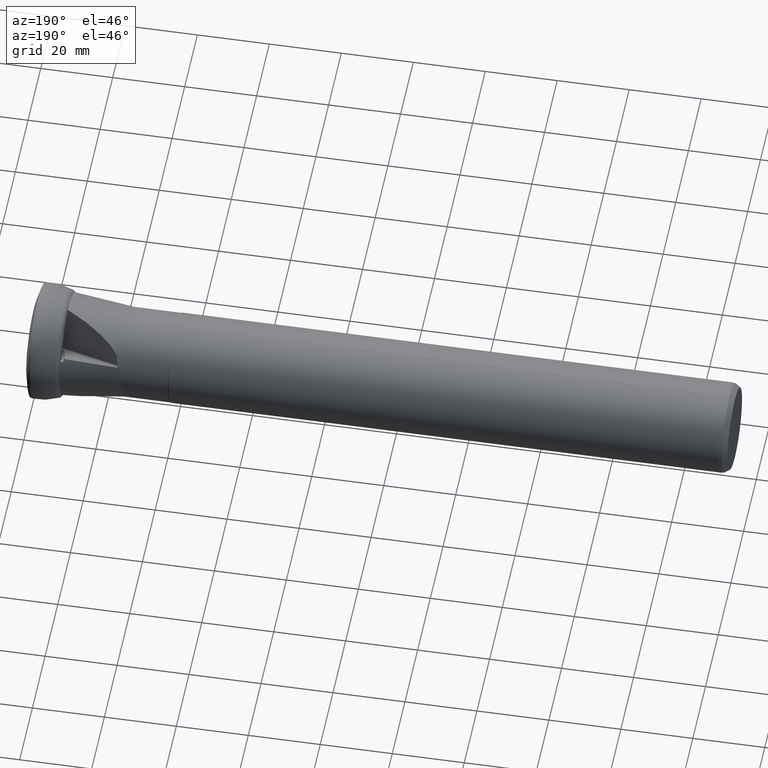
[diagram: clean part render]
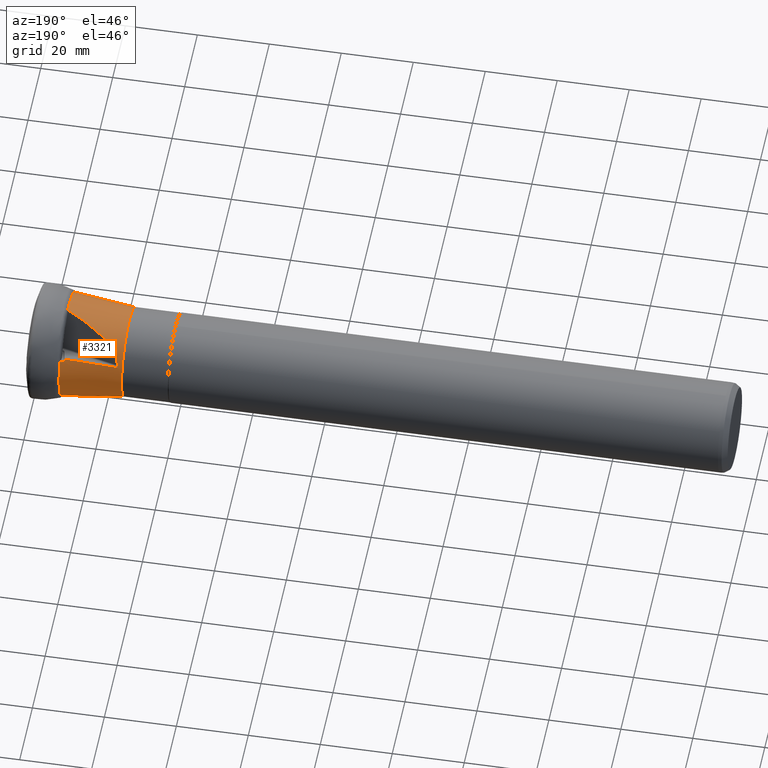
[diagram: same view with one face highlighted and labeled with its STEP entity id]
A machine part, auxiliary view. The second image highlights one B-rep face of the part: STEP entity #3321.
In plain terms, the highlighted conical surface has half-angle 6.461 deg.
Its self-contained STEP definition (entity closure, byte-faithful):
#9 = CARTESIAN_POINT ( 'NONE',  ( -24.44653898297296000, 11.43449833691993300, 5.180416396095794500 ) ) ;
#12 = AXIS2_PLACEMENT_3D ( 'NONE', #1177, #3421, #1516 ) ;
#38 = CARTESIAN_POINT ( 'NONE',  ( -24.33030226334806700, 11.45024752584629700, 5.177549694197029600 ) ) ;
#42 = FACE_OUTER_BOUND ( 'NONE', #835, .T. ) ;
#110 = CARTESIAN_POINT ( 'NONE',  ( -8.780705335247958500, 0.8021957447400367400, 14.30477988472367900 ) ) ;
#111 = EDGE_CURVE ( 'NONE', #257, #598, #2044, .T. ) ;
#135 = DIRECTION ( 'NONE',  ( 1.000000000000000000, -0.0000000000000000000, -0.0000000000000000000 ) ) ;
#143 = CARTESIAN_POINT ( 'NONE',  ( -9.940034253414063800, 12.51027876781869000, 6.709589495974801900 ) ) ;
#159 = CARTESIAN_POINT ( 'NONE',  ( -16.45537833218188300, 4.482933497027972600, 13.22792718359638700 ) ) ;
#169 = CARTESIAN_POINT ( 'NONE',  ( -9.949728527705140400, -0.3114853480998101000, -14.19161366759841200 ) ) ;
#238 = CIRCLE ( 'NONE', #12, 12.39999999999999900 ) ;
#257 = VERTEX_POINT ( 'NONE', #3065 ) ;
#280 = CIRCLE ( 'NONE', #2660, 14.32725533950150300 ) ;
#286 = CARTESIAN_POINT ( 'NONE',  ( -9.294879255188650500, 12.91413196333091300, 6.068830823020640300 ) ) ;
#296 = CARTESIAN_POINT ( 'NONE',  ( -8.780705335247960300, -1.165349774653683800, -14.27978310290422400 ) ) ;
#305 = VERTEX_POINT ( 'NONE', #3697 ) ;
#334 = CARTESIAN_POINT ( 'NONE',  ( -24.10185698594853000, -11.78453397546353500, 4.437420041870495000 ) ) ;
#350 = CARTESIAN_POINT ( 'NONE',  ( -24.09788945281969300, -10.23615636501278000, 7.334736238237690400 ) ) ;
#351 = B_SPLINE_CURVE_WITH_KNOTS ( 'NONE', 3,
 ( #2547, #2851, #2878, #923 ),
 .UNSPECIFIED., .F., .F.,
 ( 4, 4 ),
 ( 0.001921647441185771400, 0.01619645961028458000 ),
 .UNSPECIFIED. ) ;
#379 = CARTESIAN_POINT ( 'NONE',  ( -8.780705335247958500, -11.78398004032007100, 8.149114060596559700 ) ) ;
#425 = CARTESIAN_POINT ( 'NONE',  ( -9.809478229513201700, -11.86591564291479800, 7.820130587765024000 ) ) ;
#448 = VERTEX_POINT ( 'NONE', #3226 ) ;
#501 = CARTESIAN_POINT ( 'NONE',  ( -8.780705335247960300, 0.0000000000000000000, 0.0000000000000000000 ) ) ;
#524 = CARTESIAN_POINT ( 'NONE',  ( -9.944916019159260000, 12.47836084260130600, 6.767932035248173300 ) ) ;
#529 = CARTESIAN_POINT ( 'NONE',  ( -8.780705335247960300, 12.94932981497364500, 6.130669042307608200 ) ) ;
#556 = CARTESIAN_POINT ( 'NONE',  ( -9.085277308025149900, 12.92848756175823300, 6.094043241802509700 ) ) ;
#563 = ORIENTED_EDGE ( 'NONE', *, *, #1813, .T. ) ;
#591 = CARTESIAN_POINT ( 'NONE',  ( -9.085277308025149900, 12.92848756175823300, 6.094043241802509700 ) ) ;
#598 = VERTEX_POINT ( 'NONE', #350 ) ;
#606 = CARTESIAN_POINT ( 'NONE',  ( -9.954471549388722800, -12.16833406916228300, 7.308275961441376400 ) ) ;
#607 =( BOUNDED_CURVE ( )  B_SPLINE_CURVE ( 3, ( #1766, #3997, #159, #2422 ),
 .UNSPECIFIED., .F., .T. ) 
 B_SPLINE_CURVE_WITH_KNOTS ( ( 4, 4 ),
 ( 3.384171689067799100, 4.043992165308101700 ),
 .UNSPECIFIED. ) 
 CURVE ( )  GEOMETRIC_REPRESENTATION_ITEM ( )  RATIONAL_B_SPLINE_CURVE ( ( 1.000000000000000000, 0.9640476176190030400, 0.9640476176190030400, 1.000000000000000000 ) ) 
 REPRESENTATION_ITEM ( '' )  );
#666 =( BOUNDED_CURVE ( )  B_SPLINE_CURVE ( 3, ( #4008, #2417, #169, #2434 ),
 .UNSPECIFIED., .F., .T. ) 
 B_SPLINE_CURVE_WITH_KNOTS ( ( 4, 4 ),
 ( 2.687790319628975000, 2.701606582758828300 ),
 .UNSPECIFIED. ) 
 CURVE ( )  GEOMETRIC_REPRESENTATION_ITEM ( )  RATIONAL_B_SPLINE_CURVE ( ( 1.000000000000000000, 0.9999840926360219500, 0.9999840926360219500, 1.000000000000000000 ) ) 
 REPRESENTATION_ITEM ( '' )  );
#680 = CARTESIAN_POINT ( 'NONE',  ( -24.44653898297296000, 11.43449833691993300, 5.180416396095794500 ) ) ;
#711 = B_SPLINE_CURVE_WITH_KNOTS ( 'NONE', 3,
 ( #3954, #1712, #2369, #425, #2698, #750, #3018, #1074 ),
 .UNSPECIFIED., .F., .F.,
 ( 4, 2, 2, 4 ),
 ( 2.453269466693398700E-018, 0.0003128874078835675000, 0.0006257748157671326100, 0.001251549631534260900 ),
 .UNSPECIFIED. ) ;
#728 = VERTEX_POINT ( 'NONE', #1737 ) ;
#748 = EDGE_CURVE ( 'NONE', #1284, #1893, #1786, .T. ) ;
#750 = CARTESIAN_POINT ( 'NONE',  ( -9.507133594693797800, -11.73383170954345500, 8.078089937416981700 ) ) ;
#775 = CARTESIAN_POINT ( 'NONE',  ( -8.983754121029855700, -1.179548328912410000, -14.25554798689740100 ) ) ;
#777 = CARTESIAN_POINT ( 'NONE',  ( -8.780705335247963800, -12.78940064808532500, -6.457668048609237500 ) ) ;
#792 = CARTESIAN_POINT ( 'NONE',  ( -9.954471549388722800, -0.2449856058943643800, -14.19222440635089600 ) ) ;
#820 = DIRECTION ( 'NONE',  ( 0.0000000000000000000, 0.0000000000000000000, -1.000000000000000000 ) ) ;
#835 = EDGE_LOOP ( 'NONE', ( #898, #2110, #3179, #1553, #3742, #4066, #1069, #3261, #1132, #2252, #3319, #1185, #2251, #3370, #1998, #3088, #1756, #2056, #2380, #563, #4015, #3575, #1283, #2476 ) ) ;
#841 = CARTESIAN_POINT ( 'NONE',  ( -24.09788945282545900, 11.47014609487816500, 5.197403330091249900 ) ) ;
#860 = EDGE_CURVE ( 'NONE', #448, #2722, #3730, .T. ) ;
#873 = CARTESIAN_POINT ( 'NONE',  ( -24.21593057449596000, -11.38487002440202100, 5.462157558405134900 ) ) ;
#878 = EDGE_CURVE ( 'NONE', #2523, #448, #1337, .T. ) ;
#898 = ORIENTED_EDGE ( 'NONE', *, *, #2276, .F. ) ;
#899 = VERTEX_POINT ( 'NONE', #9 ) ;
#910 = VERTEX_POINT ( 'NONE', #841 ) ;
#912 = CARTESIAN_POINT ( 'NONE',  ( -9.940034253414063800, -0.4444644314300040300, -14.18901396934346700 ) ) ;
#923 = CARTESIAN_POINT ( 'NONE',  ( -24.09788945282545900, 11.47014609487816500, 5.197403330091249900 ) ) ;
#938 =( BOUNDED_CURVE ( )  B_SPLINE_CURVE ( 3, ( #3528, #1937, #3859, #1952 ),
 .UNSPECIFIED., .F., .T. ) 
 B_SPLINE_CURVE_WITH_KNOTS ( ( 4, 4 ),
 ( 3.384171689067796000, 4.043992165308101700 ),
 .UNSPECIFIED. ) 
 CURVE ( )  GEOMETRIC_REPRESENTATION_ITEM ( )  RATIONAL_B_SPLINE_CURVE ( ( 1.000000000000000000, 0.9640476176190027100, 0.9640476176190027100, 1.000000000000000000 ) ) 
 REPRESENTATION_ITEM ( '' )  );
#988 = EDGE_CURVE ( 'NONE', #1284, #3398, #2853, .T. ) ;
#1069 = ORIENTED_EDGE ( 'NONE', *, *, #3411, .T. ) ;
#1074 = CARTESIAN_POINT ( 'NONE',  ( -9.085277308025181900, -11.74184004004099600, 8.149377040092456800 ) ) ;
#1077 = CARTESIAN_POINT ( 'NONE',  ( -24.44653898297316600, -10.20362136965907100, 7.312357841257284700 ) ) ;
#1091 = CARTESIAN_POINT ( 'NONE',  ( -25.80000000000000100, 0.0000000000000000000, -12.39999999999999900 ) ) ;
#1102 = CARTESIAN_POINT ( 'NONE',  ( -8.882230127622778000, -11.76993918913210300, 8.149205142763055000 ) ) ;
#1132 = ORIENTED_EDGE ( 'NONE', *, *, #860, .F. ) ;
#1146 = CARTESIAN_POINT ( 'NONE',  ( -24.44653898297178800, -1.230876967248578000, -12.49277423735313700 ) ) ;
#1148 = VERTEX_POINT ( 'NONE', #3563 ) ;
#1149 = B_SPLINE_CURVE_WITH_KNOTS ( 'NONE', 3,
 ( #529, #1836, #2500, #556 ),
 .UNSPECIFIED., .F., .F.,
 ( 4, 4 ),
 ( 0.0007378485912096133200, 0.001045322061837736300 ),
 .UNSPECIFIED. ) ;
#1161 = B_SPLINE_CURVE_WITH_KNOTS ( 'NONE', 3,
 ( #912, #3785, #3482, #1573, #3800, #1892, #4117, #2224 ),
 .UNSPECIFIED., .F., .F.,
 ( 4, 2, 2, 4 ),
 ( 1.951563910473908000E-018, 0.0003128874078835671200, 0.0006257748157671322900, 0.001251549631534262600 ),
 .UNSPECIFIED. ) ;
#1167 = CARTESIAN_POINT ( 'NONE',  ( -24.33030226334936300, -1.241234198397105600, -12.50498008410068400 ) ) ;
#1177 = CARTESIAN_POINT ( 'NONE',  ( -25.80000000000000100, 0.0000000000000000000, 0.0000000000000000000 ) ) ;
#1185 = ORIENTED_EDGE ( 'NONE', *, *, #111, .T. ) ;
#1187 = EDGE_CURVE ( 'NONE', #2405, #3440, #3106, .T. ) ;
#1195 = CARTESIAN_POINT ( 'NONE',  ( -24.21593057449590000, 10.42280221725263400, 7.128507880714066000 ) ) ;
#1205 = DIRECTION ( 'NONE',  ( 1.000000000000000000, -0.0000000000000000000, -0.0000000000000000000 ) ) ;
#1250 = CARTESIAN_POINT ( 'NONE',  ( -9.932288387899825800, 12.56092272927275700, 6.617017773659865700 ) ) ;
#1257 = CARTESIAN_POINT ( 'NONE',  ( -9.940034253414063800, 12.51027876781869000, 6.709589495974801900 ) ) ;
#1283 = ORIENTED_EDGE ( 'NONE', *, *, #988, .T. ) ;
#1284 = VERTEX_POINT ( 'NONE', #143 ) ;
#1310 = EDGE_CURVE ( 'NONE', #1148, #2982, #607, .T. ) ;
#1328 = CARTESIAN_POINT ( 'NONE',  ( -24.21408615572525100, 11.46206554000968200, 5.183355771703091400 ) ) ;
#1331 =( BOUNDED_CURVE ( )  B_SPLINE_CURVE ( 3, ( #1146, #3096, #3716, #1807 ),
 .UNSPECIFIED., .F., .T. ) 
 B_SPLINE_CURVE_WITH_KNOTS ( ( 4, 4 ),
 ( 4.614021394744988000, 4.875824223977885700 ),
 .UNSPECIFIED. ) 
 CURVE ( )  GEOMETRIC_REPRESENTATION_ITEM ( )  RATIONAL_B_SPLINE_CURVE ( ( 1.000000000000000000, 0.9942964245158141300, 0.9942964245158141300, 1.000000000000000000 ) ) 
 REPRESENTATION_ITEM ( '' )  );
#1337 =( BOUNDED_CURVE ( )  B_SPLINE_CURVE ( 3, ( #334, #1741, #2727, #777 ),
 .UNSPECIFIED., .F., .T. ) 
 B_SPLINE_CURVE_WITH_KNOTS ( ( 4, 4 ),
 ( 3.384171689067798200, 4.043992165308100800 ),
 .UNSPECIFIED. ) 
 CURVE ( )  GEOMETRIC_REPRESENTATION_ITEM ( )  RATIONAL_B_SPLINE_CURVE ( ( 1.000000000000000000, 0.9640476176190030400, 0.9640476176190030400, 1.000000000000000000 ) ) 
 REPRESENTATION_ITEM ( '' )  );
#1367 = CARTESIAN_POINT ( 'NONE',  ( -9.949728527705142200, -12.13455528278484300, 7.365561058160177600 ) ) ;
#1404 = EDGE_CURVE ( 'NONE', #3267, #305, #1331, .T. ) ;
#1441 = CARTESIAN_POINT ( 'NONE',  ( -8.983754121029857500, -11.75589253706513300, 8.149292811278220600 ) ) ;
#1451 = CARTESIAN_POINT ( 'NONE',  ( -19.38520277073310900, -0.9044465744989834700, -13.10083118530844700 ) ) ;
#1469 = EDGE_CURVE ( 'NONE', #3267, #4146, #1985, .T. ) ;
#1480 = VERTEX_POINT ( 'NONE', #2486 ) ;
#1495 = EDGE_CURVE ( 'NONE', #899, #1148, #2663, .T. ) ;
#1502 = EDGE_CURVE ( 'NONE', #1748, #3398, #1149, .T. ) ;
#1516 = DIRECTION ( 'NONE',  ( 0.0000000000000000000, 0.0000000000000000000, -1.000000000000000000 ) ) ;
#1534 = AXIS2_PLACEMENT_3D ( 'NONE', #3154, #2509, #2841 ) ;
#1553 = ORIENTED_EDGE ( 'NONE', *, *, #1469, .T. ) ;
#1573 = CARTESIAN_POINT ( 'NONE',  ( -9.809478229513198100, -0.8394739284589746200, -14.18624967980988000 ) ) ;
#1685 = CARTESIAN_POINT ( 'NONE',  ( -9.940034253414065500, -12.06581433638879400, 7.479424473368617000 ) ) ;
#1712 = CARTESIAN_POINT ( 'NONE',  ( -9.932288387899822300, -12.01096685391901000, 7.569569291693579900 ) ) ;
#1728 = CARTESIAN_POINT ( 'NONE',  ( -24.09788945282837200, -1.233989729866484100, -12.53213956832863100 ) ) ;
#1732 = CARTESIAN_POINT ( 'NONE',  ( -24.09788945281969300, -10.23615636501278000, 7.334736238237690400 ) ) ;
#1737 = CARTESIAN_POINT ( 'NONE',  ( -9.954471549388722800, -0.2449856058943643800, -14.19222440635089600 ) ) ;
#1739 = CARTESIAN_POINT ( 'NONE',  ( -8.882230127622778000, -1.172449079717680300, -14.26766891016793300 ) ) ;
#1741 = CARTESIAN_POINT ( 'NONE',  ( -21.75288693745894600, -13.34974062006384100, 1.035504152629540100 ) ) ;
#1748 = VERTEX_POINT ( 'NONE', #3871 ) ;
#1756 = ORIENTED_EDGE ( 'NONE', *, *, #2145, .F. ) ;
#1766 = CARTESIAN_POINT ( 'NONE',  ( -24.10185698594852600, 9.735185471253858600, 7.986995773576971700 ) ) ;
#1786 =( BOUNDED_CURVE ( )  B_SPLINE_CURVE ( 3, ( #2167, #524, #4025, #4078 ),
 .UNSPECIFIED., .F., .T. ) 
 B_SPLINE_CURVE_WITH_KNOTS ( ( 4, 4 ),
 ( 2.687790319628974500, 2.701606582758827800 ),
 .UNSPECIFIED. ) 
 CURVE ( )  GEOMETRIC_REPRESENTATION_ITEM ( )  RATIONAL_B_SPLINE_CURVE ( ( 1.000000000000000000, 0.9999840926360219500, 0.9999840926360219500, 1.000000000000000000 ) ) 
 REPRESENTATION_ITEM ( '' )  );
#1807 = CARTESIAN_POINT ( 'NONE',  ( -24.10185698594854000, 2.049348504209566700, -12.42441581544751400 ) ) ;
#1813 = EDGE_CURVE ( 'NONE', #899, #910, #2219, .T. ) ;
#1836 = CARTESIAN_POINT ( 'NONE',  ( -8.882230127622769100, 12.94238826884967800, 6.118463767404829700 ) ) ;
#1892 = CARTESIAN_POINT ( 'NONE',  ( -9.507133594693794300, -1.128915245086957700, -14.20084131290449700 ) ) ;
#1893 = VERTEX_POINT ( 'NONE', #2326 ) ;
#1898 = CARTESIAN_POINT ( 'NONE',  ( -9.809478229513191000, 12.70538957137367800, 6.366119092044800500 ) ) ;
#1907 = VERTEX_POINT ( 'NONE', #379 ) ;
#1937 = CARTESIAN_POINT ( 'NONE',  ( -21.75288693745897800, 5.778097408130331100, -12.07896658722314400 ) ) ;
#1952 = CARTESIAN_POINT ( 'NONE',  ( -8.780705335247962000, 11.98720490334528000, -7.847111836114542900 ) ) ;
#1985 = B_SPLINE_CURVE_WITH_KNOTS ( 'NONE', 3,
 ( #3121, #1167, #4063, #2160 ),
 .UNSPECIFIED., .F., .F.,
 ( 4, 4 ),
 ( 1.061523051406408400E-015, 0.0003508786306458333500 ),
 .UNSPECIFIED. ) ;
#1998 = ORIENTED_EDGE ( 'NONE', *, *, #2029, .T. ) ;
#2007 = CIRCLE ( 'NONE', #3934, 14.32725533950150300 ) ;
#2029 = EDGE_CURVE ( 'NONE', #2405, #2176, #711, .T. ) ;
#2044 = B_SPLINE_CURVE_WITH_KNOTS ( 'NONE', 3,
 ( #1077, #3023, #3326, #1732 ),
 .UNSPECIFIED., .F., .F.,
 ( 4, 4 ),
 ( 7.821280271812156000E-016, 0.0003508786306542013300 ),
 .UNSPECIFIED. ) ;
#2056 = ORIENTED_EDGE ( 'NONE', *, *, #1310, .F. ) ;
#2068 = CARTESIAN_POINT ( 'NONE',  ( -8.780705335247960300, -1.165349774653683800, -14.27978310290422400 ) ) ;
#2070 = CARTESIAN_POINT ( 'NONE',  ( -8.780705335247960300, 0.0000000000000000000, 0.0000000000000000000 ) ) ;
#2074 = CARTESIAN_POINT ( 'NONE',  ( -24.09788945281969300, -10.23615636501278000, 7.334736238237690400 ) ) ;
#2097 = B_SPLINE_CURVE_WITH_KNOTS ( 'NONE', 3,
 ( #792, #2737, #1451, #3674 ),
 .UNSPECIFIED., .F., .F.,
 ( 4, 4 ),
 ( 0.001921647441185771400, 0.01619645961028752200 ),
 .UNSPECIFIED. ) ;
#2110 = ORIENTED_EDGE ( 'NONE', *, *, #3953, .F. ) ;
#2115 = EDGE_CURVE ( 'NONE', #1907, #2176, #4119, .T. ) ;
#2145 = EDGE_CURVE ( 'NONE', #2982, #1907, #280, .T. ) ;
#2160 = CARTESIAN_POINT ( 'NONE',  ( -24.09788945282837200, -1.233989729866484100, -12.53213956832863100 ) ) ;
#2167 = CARTESIAN_POINT ( 'NONE',  ( -9.940034253414063800, 12.51027876781869000, 6.709589495974801900 ) ) ;
#2169 = CARTESIAN_POINT ( 'NONE',  ( -24.33148363913075600, -10.85487629656772800, 6.425967319928069800 ) ) ;
#2176 = VERTEX_POINT ( 'NONE', #3091 ) ;
#2219 = B_SPLINE_CURVE_WITH_KNOTS ( 'NONE', 3,
 ( #680, #38, #1328, #3557 ),
 .UNSPECIFIED., .F., .F.,
 ( 4, 4 ),
 ( 7.298079800209179200E-016, 0.0003508786306482283000 ),
 .UNSPECIFIED. ) ;
#2224 = CARTESIAN_POINT ( 'NONE',  ( -9.085277308025178300, -1.186647521717336200, -14.24342028189501300 ) ) ;
#2231 = CARTESIAN_POINT ( 'NONE',  ( -9.507133594693781800, 12.86274695463031400, 6.122751375487461600 ) ) ;
#2251 = ORIENTED_EDGE ( 'NONE', *, *, #3034, .F. ) ;
#2252 = ORIENTED_EDGE ( 'NONE', *, *, #878, .F. ) ;
#2276 = EDGE_CURVE ( 'NONE', #2739, #1748, #2007, .T. ) ;
#2306 = EDGE_LOOP ( 'NONE', ( #3630 ) ) ;
#2326 = CARTESIAN_POINT ( 'NONE',  ( -9.954471549388722800, 12.41331967505655100, 6.883948444909463200 ) ) ;
#2369 = CARTESIAN_POINT ( 'NONE',  ( -9.903847824582353400, -11.95894586588699600, 7.657310356188492800 ) ) ;
#2380 = ORIENTED_EDGE ( 'NONE', *, *, #1495, .F. ) ;
#2397 = DIRECTION ( 'NONE',  ( 0.0000000000000000000, 0.0000000000000000000, -1.000000000000000000 ) ) ;
#2405 = VERTEX_POINT ( 'NONE', #3799 ) ;
#2408 = B_SPLINE_CURVE_WITH_KNOTS ( 'NONE', 3,
 ( #2068, #1739, #775, #3047 ),
 .UNSPECIFIED., .F., .F.,
 ( 4, 4 ),
 ( 0.0002636938171731587400, 0.0005711672846014324000 ),
 .UNSPECIFIED. ) ;
#2417 = CARTESIAN_POINT ( 'NONE',  ( -9.944916019159260000, -0.3779793476892756600, -14.19054350490580600 ) ) ;
#2422 = CARTESIAN_POINT ( 'NONE',  ( -8.780705335247958500, 0.8021957447400367400, 14.30477988472367900 ) ) ;
#2426 = CONICAL_SURFACE ( 'NONE', #1534, 14.41000000000000000, 0.1127590974060076300 ) ;
#2434 = CARTESIAN_POINT ( 'NONE',  ( -9.954471549388722800, -0.2449856058943643800, -14.19222440635089600 ) ) ;
#2472 = AXIS2_PLACEMENT_3D ( 'NONE', #2070, #135, #2397 ) ;
#2476 = ORIENTED_EDGE ( 'NONE', *, *, #1502, .F. ) ;
#2486 = CARTESIAN_POINT ( 'NONE',  ( -9.940034253414063800, -0.4444644314300040300, -14.18901396934346700 ) ) ;
#2497 = CARTESIAN_POINT ( 'NONE',  ( -24.44653898297316600, -10.20362136965907100, 7.312357841257284700 ) ) ;
#2500 = CARTESIAN_POINT ( 'NONE',  ( -8.983754121029839700, 12.93544086597743900, 6.106255175619131700 ) ) ;
#2509 = DIRECTION ( 'NONE',  ( 1.000000000000000000, -0.0000000000000000000, -0.0000000000000000000 ) ) ;
#2523 = VERTEX_POINT ( 'NONE', #3555 ) ;
#2547 = CARTESIAN_POINT ( 'NONE',  ( -9.954471549388722800, 12.41331967505655100, 6.883948444909463200 ) ) ;
#2552 = CARTESIAN_POINT ( 'NONE',  ( -9.085277308025149900, 12.92848756175823300, 6.094043241802509700 ) ) ;
#2660 = AXIS2_PLACEMENT_3D ( 'NONE', #501, #2771, #820 ) ;
#2663 =( BOUNDED_CURVE ( )  B_SPLINE_CURVE ( 3, ( #2811, #3132, #1195, #3434 ),
 .UNSPECIFIED., .F., .T. ) 
 B_SPLINE_CURVE_WITH_KNOTS ( ( 4, 4 ),
 ( 4.614021394744098000, 4.875824223977890200 ),
 .UNSPECIFIED. ) 
 CURVE ( )  GEOMETRIC_REPRESENTATION_ITEM ( )  RATIONAL_B_SPLINE_CURVE ( ( 1.000000000000000000, 0.9942964245157750500, 0.9942964245157750500, 1.000000000000000000 ) ) 
 REPRESENTATION_ITEM ( '' )  );
#2698 = CARTESIAN_POINT ( 'NONE',  ( -9.743711375148738100, -11.82558438827520100, 7.894144962992235100 ) ) ;
#2714 = CARTESIAN_POINT ( 'NONE',  ( -14.67052235660534600, -11.53595126487879900, 7.323964872772505100 ) ) ;
#2716 = VERTEX_POINT ( 'NONE', #4122 ) ;
#2722 = VERTEX_POINT ( 'NONE', #296 ) ;
#2727 = CARTESIAN_POINT ( 'NONE',  ( -16.45537833218189800, -13.69718772891917700, -2.731629299895801400 ) ) ;
#2737 = CARTESIAN_POINT ( 'NONE',  ( -14.67052235660824200, -0.5747640038067829400, -13.65240928859018500 ) ) ;
#2739 = VERTEX_POINT ( 'NONE', #3202 ) ;
#2771 = DIRECTION ( 'NONE',  ( 1.000000000000000000, -0.0000000000000000000, -0.0000000000000000000 ) ) ;
#2811 = CARTESIAN_POINT ( 'NONE',  ( -24.44653898297296000, 11.43449833691993300, 5.180416396095794500 ) ) ;
#2841 = DIRECTION ( 'NONE',  ( 0.0000000000000000000, 0.0000000000000000000, -1.000000000000000000 ) ) ;
#2851 = CARTESIAN_POINT ( 'NONE',  ( -14.67052235660727200, 12.11071526868515800, 6.328444415817734200 ) ) ;
#2853 = B_SPLINE_CURVE_WITH_KNOTS ( 'NONE', 3,
 ( #1257, #1250, #3810, #1898, #4124, #2231, #286, #2552 ),
 .UNSPECIFIED., .F., .F.,
 ( 4, 2, 2, 4 ),
 ( 1.734723475976807100E-018, 0.0003128874078835717800, 0.0006257748157671418300, 0.001251549631534289100 ),
 .UNSPECIFIED. ) ;
#2878 = CARTESIAN_POINT ( 'NONE',  ( -19.38520277073116600, 11.79787590441811000, 5.767141882772576400 ) ) ;
#2982 = VERTEX_POINT ( 'NONE', #110 ) ;
#3018 = CARTESIAN_POINT ( 'NONE',  ( -9.294879255188696700, -11.71282764567139100, 8.149550936558799900 ) ) ;
#3023 = CARTESIAN_POINT ( 'NONE',  ( -24.33030226334621200, -10.20901332745326900, 7.327430389905831700 ) ) ;
#3034 = EDGE_CURVE ( 'NONE', #3440, #598, #3832, .T. ) ;
#3047 = CARTESIAN_POINT ( 'NONE',  ( -9.085277308025178300, -1.186647521717336200, -14.24342028189501300 ) ) ;
#3065 = CARTESIAN_POINT ( 'NONE',  ( -24.44653898297316600, -10.20362136965907100, 7.312357841257284700 ) ) ;
#3088 = ORIENTED_EDGE ( 'NONE', *, *, #2115, .F. ) ;
#3091 = CARTESIAN_POINT ( 'NONE',  ( -9.085277308025181900, -11.74184004004099600, 8.149377040092456800 ) ) ;
#3096 = CARTESIAN_POINT ( 'NONE',  ( -24.33148363912982500, -0.1376127946536805900, -12.61358228772905400 ) ) ;
#3106 =( BOUNDED_CURVE ( )  B_SPLINE_CURVE ( 3, ( #1685, #3588, #1367, #3929 ),
 .UNSPECIFIED., .F., .T. ) 
 B_SPLINE_CURVE_WITH_KNOTS ( ( 4, 4 ),
 ( 2.687790319628975000, 2.701606582758827800 ),
 .UNSPECIFIED. ) 
 CURVE ( )  GEOMETRIC_REPRESENTATION_ITEM ( )  RATIONAL_B_SPLINE_CURVE ( ( 1.000000000000000000, 0.9999840926360219500, 0.9999840926360219500, 1.000000000000000000 ) ) 
 REPRESENTATION_ITEM ( '' )  );
#3114 = EDGE_CURVE ( 'NONE', #1480, #728, #666, .T. ) ;
#3121 = CARTESIAN_POINT ( 'NONE',  ( -24.44653898297178800, -1.230876967248578000, -12.49277423735313700 ) ) ;
#3132 = CARTESIAN_POINT ( 'NONE',  ( -24.33148363913062100, 10.99248909122948300, 6.187614967802330700 ) ) ;
#3141 = CARTESIAN_POINT ( 'NONE',  ( -8.780705335247960300, 0.0000000000000000000, 0.0000000000000000000 ) ) ;
#3142 = CARTESIAN_POINT ( 'NONE',  ( -24.10185698594853000, -11.78453397546353500, 4.437420041870495000 ) ) ;
#3154 = CARTESIAN_POINT ( 'NONE',  ( -8.050000000000041600, 0.0000000000000000000, 0.0000000000000000000 ) ) ;
#3179 = ORIENTED_EDGE ( 'NONE', *, *, #1404, .F. ) ;
#3202 = CARTESIAN_POINT ( 'NONE',  ( -8.780705335247962000, 11.98720490334528000, -7.847111836114542900 ) ) ;
#3225 = EDGE_CURVE ( 'NONE', #3677, #3677, #238, .T. ) ;
#3226 = CARTESIAN_POINT ( 'NONE',  ( -8.780705335247963800, -12.78940064808532500, -6.457668048609237500 ) ) ;
#3261 = ORIENTED_EDGE ( 'NONE', *, *, #3751, .F. ) ;
#3267 = VERTEX_POINT ( 'NONE', #3432 ) ;
#3285 = EDGE_CURVE ( 'NONE', #257, #2523, #3490, .T. ) ;
#3319 = ORIENTED_EDGE ( 'NONE', *, *, #3285, .F. ) ;
#3321 = ADVANCED_FACE ( 'NONE', ( #42, #3360 ), #2426, .T. ) ;
#3326 = CARTESIAN_POINT ( 'NONE',  ( -24.21408615572135800, -10.21995054515280700, 7.334762051639242700 ) ) ;
#3352 = CARTESIAN_POINT ( 'NONE',  ( -8.780705335247958500, -11.78398004032007100, 8.149114060596559700 ) ) ;
#3360 = FACE_BOUND ( 'NONE', #2306, .T. ) ;
#3370 = ORIENTED_EDGE ( 'NONE', *, *, #1187, .F. ) ;
#3398 = VERTEX_POINT ( 'NONE', #591 ) ;
#3411 = EDGE_CURVE ( 'NONE', #1480, #2716, #1161, .T. ) ;
#3418 = EDGE_CURVE ( 'NONE', #1893, #910, #351, .T. ) ;
#3421 = DIRECTION ( 'NONE',  ( 1.000000000000000000, -0.0000000000000000000, -0.0000000000000000000 ) ) ;
#3432 = CARTESIAN_POINT ( 'NONE',  ( -24.44653898297178800, -1.230876967248578000, -12.49277423735313700 ) ) ;
#3434 = CARTESIAN_POINT ( 'NONE',  ( -24.10185698594852600, 9.735185471253858600, 7.986995773576971700 ) ) ;
#3440 = VERTEX_POINT ( 'NONE', #606 ) ;
#3445 = DIRECTION ( 'NONE',  ( 0.0000000000000000000, 0.0000000000000000000, -1.000000000000000000 ) ) ;
#3482 = CARTESIAN_POINT ( 'NONE',  ( -9.903847824582355100, -0.6519523601775354400, -14.18540610043527500 ) ) ;
#3490 =( BOUNDED_CURVE ( )  B_SPLINE_CURVE ( 3, ( #2497, #2169, #873, #3142 ),
 .UNSPECIFIED., .F., .F. ) 
 B_SPLINE_CURVE_WITH_KNOTS ( ( 4, 4 ),
 ( 4.614021394743930100, 4.875824223977888400 ),
 .UNSPECIFIED. ) 
 CURVE ( )  GEOMETRIC_REPRESENTATION_ITEM ( )  RATIONAL_B_SPLINE_CURVE ( ( 1.000000000000000000, 0.9942964245157679400, 0.9942964245157679400, 1.000000000000000000 ) ) 
 REPRESENTATION_ITEM ( '' )  );
#3528 = CARTESIAN_POINT ( 'NONE',  ( -24.10185698594854000, 2.049348504209566700, -12.42441581544751400 ) ) ;
#3555 = CARTESIAN_POINT ( 'NONE',  ( -24.10185698594853000, -11.78453397546353500, 4.437420041870495000 ) ) ;
#3557 = CARTESIAN_POINT ( 'NONE',  ( -24.09788945282545900, 11.47014609487816500, 5.197403330091249900 ) ) ;
#3563 = CARTESIAN_POINT ( 'NONE',  ( -24.10185698594852600, 9.735185471253858600, 7.986995773576971700 ) ) ;
#3575 = ORIENTED_EDGE ( 'NONE', *, *, #748, .F. ) ;
#3588 = CARTESIAN_POINT ( 'NONE',  ( -9.944916019159263600, -12.10038149491213300, 7.422611469657581100 ) ) ;
#3630 = ORIENTED_EDGE ( 'NONE', *, *, #3225, .T. ) ;
#3648 = CARTESIAN_POINT ( 'NONE',  ( -9.954471549388722800, -12.16833406916228300, 7.308275961441376400 ) ) ;
#3663 = CARTESIAN_POINT ( 'NONE',  ( -9.085277308025181900, -11.74184004004099600, 8.149377040092456800 ) ) ;
#3674 = CARTESIAN_POINT ( 'NONE',  ( -24.09788945282837200, -1.233989729866484100, -12.53213956832863100 ) ) ;
#3677 = VERTEX_POINT ( 'NONE', #1091 ) ;
#3697 = CARTESIAN_POINT ( 'NONE',  ( -24.10185698594854000, 2.049348504209566700, -12.42441581544751400 ) ) ;
#3716 = CARTESIAN_POINT ( 'NONE',  ( -24.21593057449550900, 0.9620678071532566800, -12.59066543911802000 ) ) ;
#3730 = CIRCLE ( 'NONE', #2472, 14.32725533950150300 ) ;
#3742 = ORIENTED_EDGE ( 'NONE', *, *, #3837, .F. ) ;
#3751 = EDGE_CURVE ( 'NONE', #2722, #2716, #2408, .T. ) ;
#3785 = CARTESIAN_POINT ( 'NONE',  ( -9.932288387899824000, -0.5499558753538467100, -14.18658706535349100 ) ) ;
#3799 = CARTESIAN_POINT ( 'NONE',  ( -9.940034253414065500, -12.06581433638879400, 7.479424473368617000 ) ) ;
#3800 = CARTESIAN_POINT ( 'NONE',  ( -9.743711375148734500, -0.9237378849707746900, -14.18832897633908800 ) ) ;
#3810 = CARTESIAN_POINT ( 'NONE',  ( -9.903847824582349800, 12.61089822606443500, 6.528095744246722500 ) ) ;
#3832 = B_SPLINE_CURVE_WITH_KNOTS ( 'NONE', 3,
 ( #3648, #2714, #3980, #2074 ),
 .UNSPECIFIED., .F., .F.,
 ( 4, 4 ),
 ( 0.001921647441185771400, 0.01619645961027875800 ),
 .UNSPECIFIED. ) ;
#3837 = EDGE_CURVE ( 'NONE', #728, #4146, #2097, .T. ) ;
#3859 = CARTESIAN_POINT ( 'NONE',  ( -16.45537833218191200, 9.214254231891155600, -10.49629788370067700 ) ) ;
#3871 = CARTESIAN_POINT ( 'NONE',  ( -8.780705335247960300, 12.94932981497364500, 6.130669042307608200 ) ) ;
#3929 = CARTESIAN_POINT ( 'NONE',  ( -9.954471549388722800, -12.16833406916228300, 7.308275961441376400 ) ) ;
#3934 = AXIS2_PLACEMENT_3D ( 'NONE', #3141, #1205, #3445 ) ;
#3953 = EDGE_CURVE ( 'NONE', #305, #2739, #938, .T. ) ;
#3954 = CARTESIAN_POINT ( 'NONE',  ( -9.940034253414065500, -12.06581433638879400, 7.479424473368617000 ) ) ;
#3980 = CARTESIAN_POINT ( 'NONE',  ( -19.38520277072731800, -10.89342932991987900, 7.333689302536044800 ) ) ;
#3997 = CARTESIAN_POINT ( 'NONE',  ( -21.75288693745893900, 7.571643211933424500, 11.04346243459352400 ) ) ;
#4008 = CARTESIAN_POINT ( 'NONE',  ( -9.940034253414063800, -0.4444644314300040300, -14.18901396934346700 ) ) ;
#4015 = ORIENTED_EDGE ( 'NONE', *, *, #3418, .F. ) ;
#4025 = CARTESIAN_POINT ( 'NONE',  ( -9.949728527705138600, 12.44604063088455500, 6.826052609438186800 ) ) ;
#4063 = CARTESIAN_POINT ( 'NONE',  ( -24.21408615572715600, -1.242114994857306300, -12.51811782334191000 ) ) ;
#4066 = ORIENTED_EDGE ( 'NONE', *, *, #3114, .F. ) ;
#4078 = CARTESIAN_POINT ( 'NONE',  ( -9.954471549388722800, 12.41331967505655100, 6.883948444909463200 ) ) ;
#4117 = CARTESIAN_POINT ( 'NONE',  ( -9.294879255188687800, -1.201304317659618800, -14.21838175957949000 ) ) ;
#4119 = B_SPLINE_CURVE_WITH_KNOTS ( 'NONE', 3,
 ( #3352, #1102, #1441, #3663 ),
 .UNSPECIFIED., .F., .F.,
 ( 4, 4 ),
 ( 0.0007378485912096097400, 0.001045322061837767800 ),
 .UNSPECIFIED. ) ;
#4122 = CARTESIAN_POINT ( 'NONE',  ( -9.085277308025178300, -1.186647521717336200, -14.24342028189501300 ) ) ;
#4124 = CARTESIAN_POINT ( 'NONE',  ( -9.743711375148723900, 12.74932227324587500, 6.294184013346797900 ) ) ;
#4146 = VERTEX_POINT ( 'NONE', #1728 ) ;